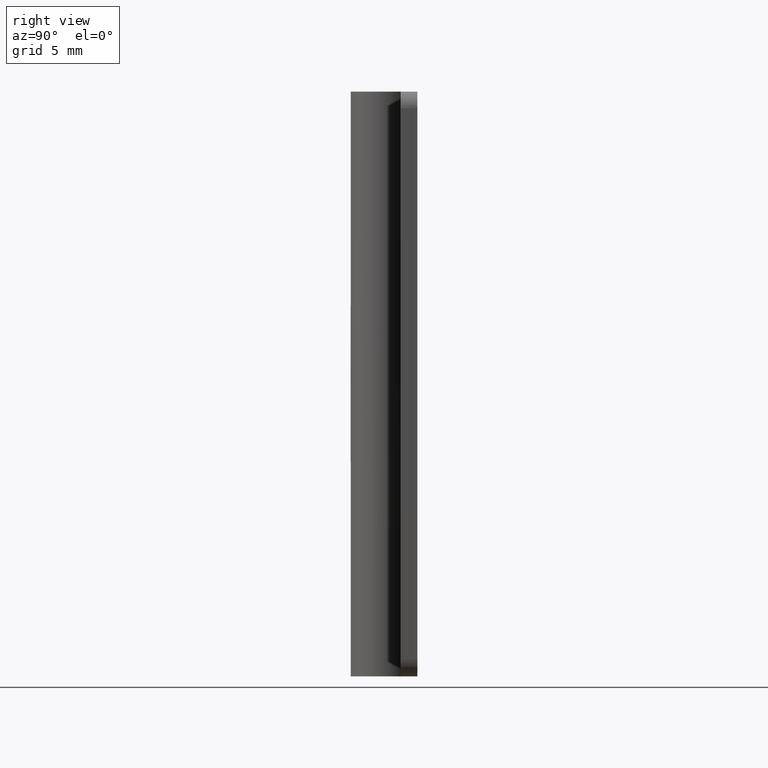
[diagram: clean part render]
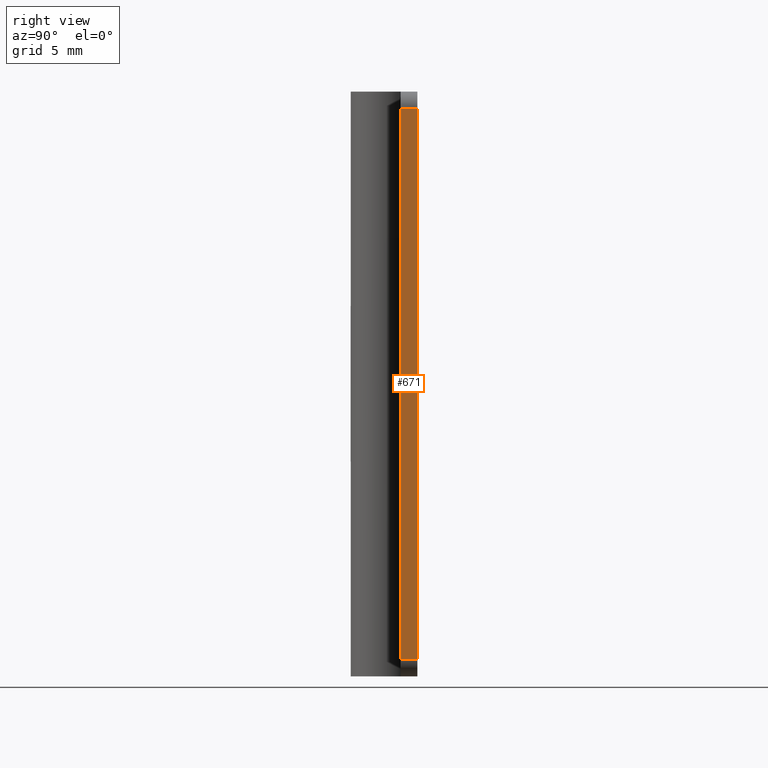
[diagram: same view with one face highlighted and labeled with its STEP entity id]
A machine part, right view. The second image highlights one B-rep face of the part: STEP entity #671.
In plain terms, the highlighted face is a freeform B-spline surface patch.
Its self-contained STEP definition (entity closure, byte-faithful):
#60=CARTESIAN_POINT('',(13.0,2.0,34.0));
#61=VERTEX_POINT('',#60);
#82=CARTESIAN_POINT('',(13.0,1.0,34.0));
#83=VERTEX_POINT('',#82);
#97=CARTESIAN_POINT('',(13.0,2.0,34.0));
#98=CARTESIAN_POINT('',(13.0,1.0,34.0));
#99=QUASI_UNIFORM_CURVE('',1,(#97,#98),.UNSPECIFIED.,.F.,.U.);
#100=EDGE_CURVE('',#61,#83,#99,.T.);
#119=CARTESIAN_POINT('',(13.0,2.0,1.0));
#120=VERTEX_POINT('',#119);
#136=CARTESIAN_POINT('',(13.0,1.0,1.0));
#137=VERTEX_POINT('',#136);
#138=CARTESIAN_POINT('',(13.0,1.0,1.0));
#139=CARTESIAN_POINT('',(13.0,2.0,1.0));
#140=QUASI_UNIFORM_CURVE('',1,(#138,#139),.UNSPECIFIED.,.F.,.U.);
#141=EDGE_CURVE('',#137,#120,#140,.T.);
#635=CARTESIAN_POINT('',(13.0,1.0,34.0));
#636=CARTESIAN_POINT('',(13.0,1.0,1.0));
#637=QUASI_UNIFORM_CURVE('',1,(#635,#636),.UNSPECIFIED.,.F.,.U.);
#638=EDGE_CURVE('',#83,#137,#637,.T.);
#656=CARTESIAN_POINT('',(13.0,0.950050001938194,35.648349936039587));
#657=CARTESIAN_POINT('',(13.0,0.950050001938194,-0.648350821168572));
#658=CARTESIAN_POINT('',(13.0,2.049950024883896,35.648349936039587));
#659=CARTESIAN_POINT('',(13.0,2.049950024883896,-0.648350821168572));
#660=B_SPLINE_SURFACE_WITH_KNOTS('',1,1,((#656,#658),(#657,#659)),.UNSPECIFIED.,.F.,.F.,.U.,(2,2),(2,2),(0.0,36.296700757208157),(0.041708334948495,0.958291687403247),.UNSPECIFIED.);
#661=ORIENTED_EDGE('',*,*,#638,.T.);
#662=ORIENTED_EDGE('',*,*,#141,.T.);
#663=CARTESIAN_POINT('',(13.0,2.0,34.0));
#664=CARTESIAN_POINT('',(13.0,2.0,1.0));
#665=QUASI_UNIFORM_CURVE('',1,(#663,#664),.UNSPECIFIED.,.F.,.U.);
#666=EDGE_CURVE('',#61,#120,#665,.T.);
#667=ORIENTED_EDGE('',*,*,#666,.F.);
#668=ORIENTED_EDGE('',*,*,#100,.T.);
#669=EDGE_LOOP('',(#661,#662,#667,#668));
#670=FACE_OUTER_BOUND('',#669,.T.);
#671=ADVANCED_FACE('',(#670),#660,.T.);